MODEL slx_f47974e6fde9
KIND model
CONFIG AbsTol = auto
CONFIG EnableMultiTasking = off
CONFIG FixedStep = 0.01
CONFIG InitFcn = SP_CH=1;\nTECH_EXP=0;\nTECH_Pro=0.5;\n
CONFIG MaxStep = auto
CONFIG MinStep = auto
CONFIG RelTol = 1e-3
CONFIG SampleTimeConstraint = Unconstrained
CONFIG SolverName = VariableStepAuto
CONFIG StartTime = 0.0
CONFIG StopTime = 50
BLOCK [Sum] Add
  IconShape = rectangular
BLOCK [Reference] Compare To Constant2  REF=simulink/Logic and Bit
Operations/Compare
To Constant
  SourceBlock = simulink/Logic and Bit\nOperations/Compare\nTo Constant
  SourceType = Compare To Constant
BLOCK [Constant] Constant
  NameLocation = left
  Value = 1.5
BLOCK [Constant] Constant1
  NameLocation = left
  Value = SP_CH
BLOCK [Constant] Constant2
  Value = TECH_EXP*rand
BLOCK [Delay] Delay
  DelayLength = 1
  InitialCondition = 0
  InputPortMap = u0
  NameLocation = top
  SampleTime = Ts
BLOCK [From] From
  GotoTag = P_smooth
  TagVisibility = global
BLOCK [From] From1
  GotoTag = F1_RL
  TagVisibility = global
BLOCK [From] From10
  GotoTag = P_smo_res
BLOCK [From] From2
  GotoTag = Wp
  TagVisibility = global
BLOCK [From] From4
  GotoTag = SoC
  TagVisibility = global
BLOCK [From] From6
  GotoTag = Wp
  NameLocation = left
  TagVisibility = global
BLOCK [From] From7
  GotoTag = P_smooth
  TagVisibility = global
BLOCK [Goto] Goto
  GotoTag = Target
  TagVisibility = global
BLOCK [Integrator] Integrator
  LimitOutput = on
  LowerSaturationLimit = -0.1
  UpperSaturationLimit = 0.1
BLOCK [Reference] Mean  REF=spsMeanLib/Mean
  LibrarySourceBlock = sps_lib/Sensors and Measurements/Mean
  NameLocation = left
  SourceBlock = spsMeanLib/Mean
  SourceType = Mean
BLOCK [Reference] PID Controller  REF=slpidlib/PID Controller
  LibrarySourceBlock = simulink/Continuous/PID Controller
  SourceBlock = slpidlib/PID Controller
  SourceType = PID 1dof
BLOCK [Reference] RL Agent  REF=rllib/RL Agent
  SourceBlock = rllib/RL Agent
  SourceType = RL Agent
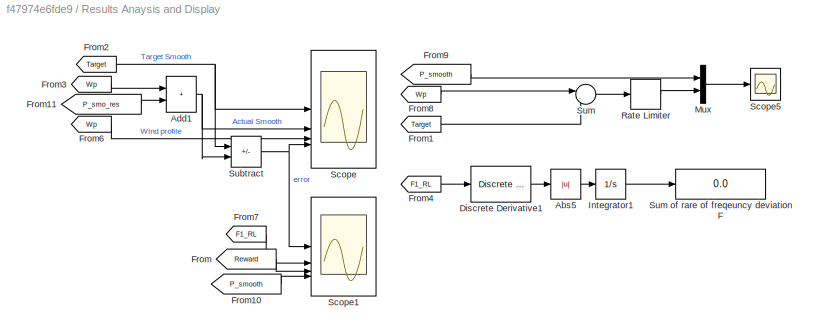
BLOCK [SubSystem] Results Anaysis and Display 
BLOCK [Abs] Results Anaysis and Display /Abs5
  SaturateOnIntegerOverflow = off
BLOCK [Sum] Results Anaysis and Display /Add1
  IconShape = rectangular
BLOCK [Reference] Results Anaysis and Display /Discrete Derivative1  REF=simulink/Discrete/Discrete Derivative
  SourceBlock = simulink/Discrete/Discrete Derivative
  SourceType = Discrete Derivative
BLOCK [From] Results Anaysis and Display /From
  GotoTag = Reward
  TagVisibility = global
BLOCK [From] Results Anaysis and Display /From1
  GotoTag = Target
  TagVisibility = global
BLOCK [From] Results Anaysis and Display /From10
  GotoTag = P_smooth
  TagVisibility = global
BLOCK [From] Results Anaysis and Display /From11
  GotoTag = P_smo_res
BLOCK [From] Results Anaysis and Display /From2
  GotoTag = Target
  TagVisibility = global
BLOCK [From] Results Anaysis and Display /From3
  GotoTag = Wp
  TagVisibility = global
BLOCK [From] Results Anaysis and Display /From4
  GotoTag = F1_RL
  TagVisibility = global
BLOCK [From] Results Anaysis and Display /From6
  GotoTag = Wp
  TagVisibility = global
BLOCK [From] Results Anaysis and Display /From7
  GotoTag = F1_RL
  TagVisibility = global
BLOCK [From] Results Anaysis and Display /From8
  GotoTag = Wp
  TagVisibility = global
BLOCK [From] Results Anaysis and Display /From9
  GotoTag = P_smooth
  TagVisibility = global
BLOCK [Integrator] Results Anaysis and Display /Integrator1
BLOCK [Mux] Results Anaysis and Display /Mux
  DisplayOption = bar
  Inputs = 2
BLOCK [RateLimiter] Results Anaysis and Display /Rate Limiter
  FallingSlewLimit = -0.1
  RisingSlewLimit = 0.1
  SampleTimeMode = inherited
BLOCK [Scope] Results Anaysis and Display /Scope
  Floating = off
  NumInputPorts = 4
  ScopeSpecificationString = Simulink.scopes.TimeScopeBlockCfg('CurrentConfiguration', extmgr.ConfigurationSet(extmgr.Configuration('Core','General UI',true),extmgr.Configuration('Core','Source UI',true),extmgr.Configuration('Sources','WiredSimulink',true,'DataLoggingVariableName','ScopeData1'),extmgr.Configuration('Visuals','Time Domain',true,'SerializedDisplays',{struct('MinYLimReal','0.5','MaxYLimReal','2.5','YLabelReal','...<+4380ch>
BLOCK [Scope] Results Anaysis and Display /Scope1
  Floating = off
  NumInputPorts = 4
  ScopeSpecificationString = Simulink.scopes.TimeScopeBlockCfg('CurrentConfiguration', extmgr.ConfigurationSet(extmgr.Configuration('Core','General UI',true),extmgr.Configuration('Core','Source UI',true),extmgr.Configuration('Sources','WiredSimulink',true,'DataLoggingVariableName','ScopeData2'),extmgr.Configuration('Visuals','Time Domain',true,'SerializedDisplays',{struct('MinYLimReal','-0.05625','MaxYLimReal','0.00625','YLab...<+3845ch>
BLOCK [Scope] Results Anaysis and Display /Scope5
  Floating = off
  NumInputPorts = 1
  ScopeSpecificationString = Simulink.scopes.TimeScopeBlockCfg('CurrentConfiguration', extmgr.ConfigurationSet(extmgr.Configuration('Core','General UI',true),extmgr.Configuration('Core','Source UI',true),extmgr.Configuration('Sources','WiredSimulink',true,'DataLoggingVariableName','P_smoth1','DataLogging',true,'DataLoggingSaveFormat','StructureWithTime'),extmgr.Configuration('Visuals','Time Domain',true,'SerializedDisplays',{...<+1607ch>
BLOCK [Sum] Results Anaysis and Display /Subtract
  IconShape = rectangular
  Inputs = +-
BLOCK [Sum] Results Anaysis and Display /Sum
  Inputs = |-+
BLOCK [Display] Results Anaysis and Display /Sum of  rare of freqeuncy deviation F
  Decimation = 1
BLOCK [Saturate] Saturation
  LowerLimit = -0.1
  UpperLimit = 0.1
BLOCK [Goto] Smoothing_set_point
  GotoTag = P_smooth
  TagVisibility = global
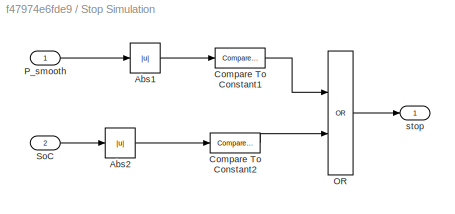
BLOCK [SubSystem] Stop Simulation
BLOCK [Abs] Stop Simulation/Abs1
  SaturateOnIntegerOverflow = off
BLOCK [Abs] Stop Simulation/Abs2
  SaturateOnIntegerOverflow = off
BLOCK [Reference] Stop Simulation/Compare To Constant1  REF=simulink/Logic and Bit
Operations/Compare
To Constant
  SourceBlock = simulink/Logic and Bit\nOperations/Compare\nTo Constant
  SourceType = Compare To Constant
BLOCK [Reference] Stop Simulation/Compare To Constant2  REF=simulink/Logic and Bit
Operations/Compare
To Constant
  SourceBlock = simulink/Logic and Bit\nOperations/Compare\nTo Constant
  SourceType = Compare To Constant
BLOCK [Logic] Stop Simulation/OR
  AllPortsSameDT = off
  IconShape = distinctive
  Operator = OR
  OutDataTypeStr = boolean
BLOCK [Inport] Stop Simulation/P_smooth
BLOCK [Inport] Stop Simulation/SoC
  Port = 2
BLOCK [Outport] Stop Simulation/stop
  VectorParamsAs1DForOutWhenUnconnected = off
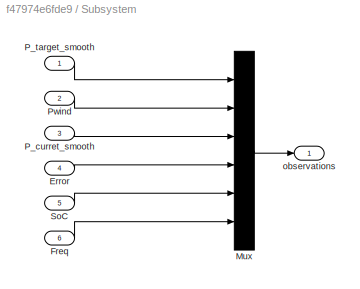
BLOCK [SubSystem] Subsystem
BLOCK [Inport] Subsystem/Error
  Port = 4
BLOCK [Inport] Subsystem/Freq
  Port = 6
BLOCK [Mux] Subsystem/Mux
  DisplayOption = bar
  Inputs = 6
BLOCK [Inport] Subsystem/P_curret_smooth
  Port = 3
BLOCK [Inport] Subsystem/P_target_smooth
BLOCK [Inport] Subsystem/Pwind
  Port = 2
BLOCK [Inport] Subsystem/SoC
  Port = 5
BLOCK [Outport] Subsystem/observations
  VectorParamsAs1DForOutWhenUnconnected = off
BLOCK [Sum] Subtract
  IconShape = rectangular
  Inputs = +-
BLOCK [Sum] Subtract1
  IconShape = rectangular
  Inputs = +-
BLOCK [Switch] Switch
  Criteria = u2 > Threshold
  InputSameDT = off
  NameLocation = left
  SaturateOnIntegerOverflow = off
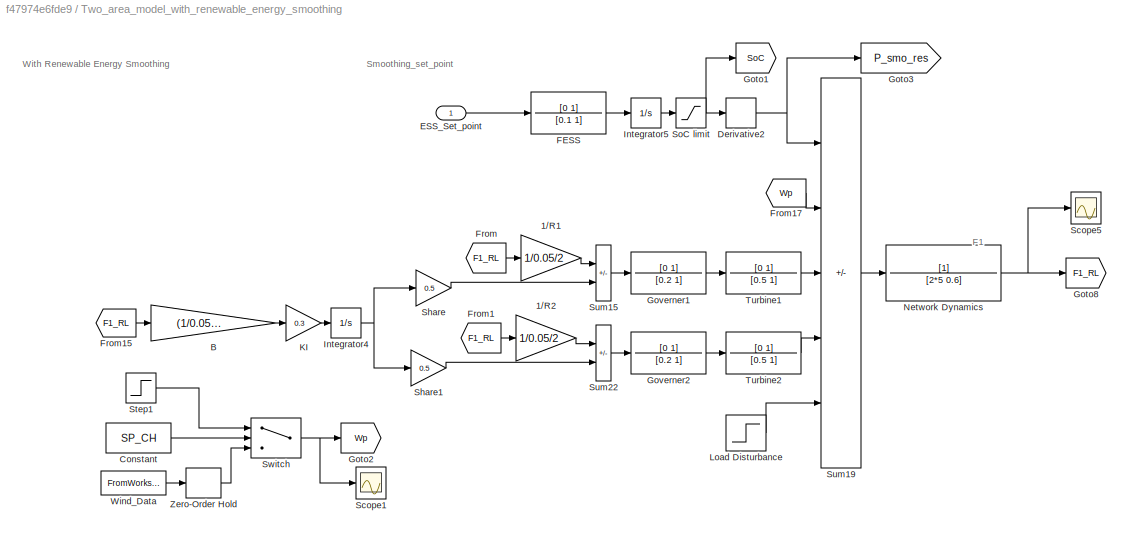
BLOCK [SubSystem] Two_area_model_with_renewable_energy_smoothing
BLOCK [Gain] Two_area_model_with_renewable_energy_smoothing/1//R1
  Gain = 1/0.05/2
  NameLocation = top
BLOCK [Gain] Two_area_model_with_renewable_energy_smoothing/1//R2
  Gain = 1/0.05/2
  NameLocation = top
BLOCK [Gain] Two_area_model_with_renewable_energy_smoothing/B
  Gain = (1/0.05)+0.6
  NameLocation = top
BLOCK [Constant] Two_area_model_with_renewable_energy_smoothing/Constant
  Value = SP_CH
BLOCK [Derivative] Two_area_model_with_renewable_energy_smoothing/Derivative2
BLOCK [Inport] Two_area_model_with_renewable_energy_smoothing/ESS_Set_point
BLOCK [TransferFcn] Two_area_model_with_renewable_energy_smoothing/FESS
  Denominator = [0.1  1]
  NameLocation = top
  Numerator = [0 1]
BLOCK [From] Two_area_model_with_renewable_energy_smoothing/From
  GotoTag = F1_RL
  TagVisibility = global
BLOCK [From] Two_area_model_with_renewable_energy_smoothing/From1
  GotoTag = F1_RL
  TagVisibility = global
BLOCK [From] Two_area_model_with_renewable_energy_smoothing/From15
  GotoTag = F1_RL
  TagVisibility = global
BLOCK [From] Two_area_model_with_renewable_energy_smoothing/From17
  GotoTag = Wp
  TagVisibility = global
BLOCK [Goto] Two_area_model_with_renewable_energy_smoothing/Goto1
  GotoTag = SoC
  TagVisibility = global
BLOCK [Goto] Two_area_model_with_renewable_energy_smoothing/Goto2
  GotoTag = Wp
  TagVisibility = global
BLOCK [Goto] Two_area_model_with_renewable_energy_smoothing/Goto3
  GotoTag = P_smo_res
BLOCK [Goto] Two_area_model_with_renewable_energy_smoothing/Goto8
  GotoTag = F1_RL
  TagVisibility = global
BLOCK [TransferFcn] Two_area_model_with_renewable_energy_smoothing/Governer1
  Denominator = [0.2  1]
  NameLocation = top
  Numerator = [0 1]
BLOCK [TransferFcn] Two_area_model_with_renewable_energy_smoothing/Governer2
  Denominator = [0.2  1]
  NameLocation = top
  Numerator = [0 1]
BLOCK [Integrator] Two_area_model_with_renewable_energy_smoothing/Integrator4
BLOCK [Integrator] Two_area_model_with_renewable_energy_smoothing/Integrator5
  InitialCondition = -9600/10/2
BLOCK [Gain] Two_area_model_with_renewable_energy_smoothing/KI
  Gain = 0.3
  NameLocation = top
BLOCK [Step] Two_area_model_with_renewable_energy_smoothing/Load Disturbance
  Time = 20+rand*10
BLOCK [TransferFcn] Two_area_model_with_renewable_energy_smoothing/Network Dynamics
  Denominator = [2*5  0.6]
  NameLocation = top
BLOCK [Scope] Two_area_model_with_renewable_energy_smoothing/Scope1
  Floating = off
  NumInputPorts = 1
  ScopeSpecificationString = Simulink.scopes.TimeScopeBlockCfg('CurrentConfiguration', extmgr.ConfigurationSet(extmgr.Configuration('Core','General UI',true),extmgr.Configuration('Core','Source UI',true),extmgr.Configuration('Sources','WiredSimulink',true,'DataLoggingSaveFormat','Array','DataLoggingDecimation','1','DataLoggingDecimateData',true,'DataLoggingVariableName','ScopeData3'),extmgr.Configuration('Visuals','Time Domai...<+1902ch>
BLOCK [Scope] Two_area_model_with_renewable_energy_smoothing/Scope5
  Floating = off
  NumInputPorts = 1
  ScopeSpecificationString = Simulink.scopes.TimeScopeBlockCfg('CurrentConfiguration', extmgr.ConfigurationSet(extmgr.Configuration('Core','General UI',true),extmgr.Configuration('Core','Source UI',true),extmgr.Configuration('Sources','WiredSimulink',true,'DataLoggingSaveFormat','Array','DataLoggingDecimation','1','DataLoggingDecimateData',true,'DataLoggingVariableName','ScopeData3'),extmgr.Configuration('Visuals','Time Domai...<+1788ch>
BLOCK [Gain] Two_area_model_with_renewable_energy_smoothing/Share
  Gain = 0.5
  NameLocation = top
BLOCK [Gain] Two_area_model_with_renewable_energy_smoothing/Share1
  Gain = 0.5
  NameLocation = top
BLOCK [Saturate] Two_area_model_with_renewable_energy_smoothing/SoC limit
  LowerLimit = -9600/10
  UpperLimit = 0
BLOCK [Step] Two_area_model_with_renewable_energy_smoothing/Step1
  After = 1.55
  Before = 1.5
  SampleTime = 0
  Time = 25
BLOCK [Sum] Two_area_model_with_renewable_energy_smoothing/Sum15
  IconShape = rectangular
  InputSameDT = on
  Inputs = --
  NameLocation = top
  OutDataTypeStr = Inherit: Same as first input
  SaturateOnIntegerOverflow = on
BLOCK [Sum] Two_area_model_with_renewable_energy_smoothing/Sum19
  IconShape = rectangular
  InputSameDT = on
  Inputs = ++++-
  NameLocation = top
  OutDataTypeStr = Inherit: Same as first input
  SaturateOnIntegerOverflow = on
BLOCK [Sum] Two_area_model_with_renewable_energy_smoothing/Sum22
  IconShape = rectangular
  InputSameDT = on
  Inputs = --
  NameLocation = top
  OutDataTypeStr = Inherit: Same as first input
  SaturateOnIntegerOverflow = on
BLOCK [Switch] Two_area_model_with_renewable_energy_smoothing/Switch
  Criteria = u2 > Threshold
  InputSameDT = off
  SaturateOnIntegerOverflow = off
BLOCK [TransferFcn] Two_area_model_with_renewable_energy_smoothing/Turbine1
  Denominator = [0.5  1]
  NameLocation = top
  Numerator = [0 1]
BLOCK [TransferFcn] Two_area_model_with_renewable_energy_smoothing/Turbine2
  Denominator = [0.5  1]
  NameLocation = top
  Numerator = [0 1]
BLOCK [FromWorkspace] Two_area_model_with_renewable_energy_smoothing/Wind_Data
  SampleTime = 0.1
  VariableName = WindProfile
BLOCK [ZeroOrderHold] Two_area_model_with_renewable_energy_smoothing/Zero-Order Hold
  SampleTime = 0.01
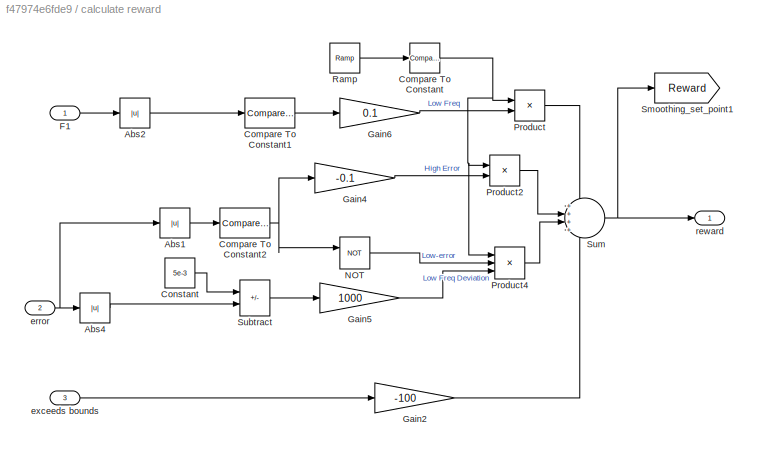
BLOCK [SubSystem] calculate reward
BLOCK [Abs] calculate reward/Abs1
  SaturateOnIntegerOverflow = off
BLOCK [Abs] calculate reward/Abs2
  SaturateOnIntegerOverflow = off
BLOCK [Abs] calculate reward/Abs4
  SaturateOnIntegerOverflow = off
BLOCK [Reference] calculate reward/Compare To Constant  REF=simulink/Logic and Bit
Operations/Compare
To Constant
  SourceBlock = simulink/Logic and Bit\nOperations/Compare\nTo Constant
  SourceType = Compare To Constant
BLOCK [Reference] calculate reward/Compare To Constant1  REF=simulink/Logic and Bit
Operations/Compare
To Constant
  SourceBlock = simulink/Logic and Bit\nOperations/Compare\nTo Constant
  SourceType = Compare To Constant
BLOCK [Reference] calculate reward/Compare To Constant2  REF=simulink/Logic and Bit
Operations/Compare
To Constant
  SourceBlock = simulink/Logic and Bit\nOperations/Compare\nTo Constant
  SourceType = Compare To Constant
BLOCK [Constant] calculate reward/Constant
  Value = 5e-3
BLOCK [Inport] calculate reward/F1
BLOCK [Gain] calculate reward/Gain2
  Gain = -100
BLOCK [Gain] calculate reward/Gain4
  Gain = -0.1
BLOCK [Gain] calculate reward/Gain5
  Gain = 1000
BLOCK [Gain] calculate reward/Gain6
  Gain = 0.1
BLOCK [Logic] calculate reward/NOT
  AllPortsSameDT = off
  IconShape = distinctive
  Operator = NOT
  OutDataTypeStr = boolean
BLOCK [Product] calculate reward/Product
BLOCK [Product] calculate reward/Product2
BLOCK [Product] calculate reward/Product4
  Inputs = 3
BLOCK [Reference] calculate reward/Ramp  REF=simulink/Sources/Ramp
  SourceBlock = simulink/Sources/Ramp
  SourceType = Ramp
BLOCK [Goto] calculate reward/Smoothing_set_point1
  GotoTag = Reward
  TagVisibility = global
BLOCK [Sum] calculate reward/Subtract
  IconShape = rectangular
  Inputs = +-
BLOCK [Sum] calculate reward/Sum
  Inputs = ++++
  OutDataTypeStr = double
BLOCK [Inport] calculate reward/error
  Port = 2
BLOCK [Inport] calculate reward/exceeds bounds
  Port = 3
BLOCK [Outport] calculate reward/reward
  VectorParamsAs1DForOutWhenUnconnected = off
ANNOTATION (root): The agents is trained to Control A renwable energy smoothing facility increased output power. The agents aims to follow a target smoothing curve by the power system operator and while doing so, it need to minimize the freqeuncy deviation and rate of frequency deviation. This is done by Ahmed Abd Elaziz: <email>, under the supervision of Prof. Hany E.Z. Farag Smart grid lab at York University.
ANNOTATION Two_area_model_with_renewable_energy_smoothing: F1
ANNOTATION Two_area_model_with_renewable_energy_smoothing: Smoothing_set_point
ANNOTATION Two_area_model_with_renewable_energy_smoothing: With Renewable Energy Smoothing
NET Add:1 -> Subsystem:3, Subtract1:2, Subtract:2
LINE Compare To Constant2:1 -> RL Agent:6
LINE Constant1:1 -> Switch:2
LINE Constant2:1 -> Compare To Constant2:1
LINE Constant:1 -> Switch:1
LINE Delay:1 -> RL Agent:5
LINE From10:1 -> Add:2
NET From1:1 -> Subsystem:6, calculate reward:1
LINE From2:1 -> Subsystem:2
NET From4:1 -> Stop Simulation:2, Subsystem:5
NET From6:1 -> Add:1, Mean:1
LINE From7:1 -> Two_area_model_with_renewable_energy_smoothing:1
LINE From:1 -> Stop Simulation:1
LINE Integrator:1 -> Smoothing_set_point:1
LINE Mean:1 -> Switch:3
LINE PID Controller:1 -> Saturation:1
NET RL Agent:1 -> Delay:1, Integrator:1
LINE Results Anaysis and Display /Abs5:1 -> Results Anaysis and Display /Integrator1:1
NET Results Anaysis and Display /Add1:1 -> Results Anaysis and Display /Scope:2, Results Anaysis and Display /Subtract:2
LINE Results Anaysis and Display /Discrete Derivative1:1 -> Results Anaysis and Display /Abs5:1
LINE Results Anaysis and Display /From10:1 -> Results Anaysis and Display /Scope1:4
LINE Results Anaysis and Display /From11:1 -> Results Anaysis and Display /Add1:2
LINE Results Anaysis and Display /From1:1 -> Results Anaysis and Display /Sum:2
NET Results Anaysis and Display /From2:1 -> Results Anaysis and Display /Scope:1, Results Anaysis and Display /Subtract:1
LINE Results Anaysis and Display /From3:1 -> Results Anaysis and Display /Add1:1
LINE Results Anaysis and Display /From4:1 -> Results Anaysis and Display /Discrete Derivative1:1
LINE Results Anaysis and Display /From6:1 -> Results Anaysis and Display /Scope:3
LINE Results Anaysis and Display /From7:1 -> Results Anaysis and Display /Scope1:2
LINE Results Anaysis and Display /From8:1 -> Results Anaysis and Display /Sum:1
LINE Results Anaysis and Display /From9:1 -> Results Anaysis and Display /Mux:1
LINE Results Anaysis and Display /From:1 -> Results Anaysis and Display /Scope1:3
LINE Results Anaysis and Display /Integrator1:1 -> Results Anaysis and Display /Sum of  rare of freqeuncy deviation F:1
LINE Results Anaysis and Display /Mux:1 -> Results Anaysis and Display /Scope5:1
LINE Results Anaysis and Display /Rate Limiter:1 -> Results Anaysis and Display /Mux:2
NET Results Anaysis and Display /Subtract:1 -> Results Anaysis and Display /Scope1:1, Results Anaysis and Display /Scope:4
LINE Results Anaysis and Display /Sum:1 -> Results Anaysis and Display /Rate Limiter:1
LINE Saturation:1 -> RL Agent:4
LINE Stop Simulation/Abs1:1 -> Stop Simulation/Compare To Constant1:1
LINE Stop Simulation/Abs2:1 -> Stop Simulation/Compare To Constant2:1
LINE Stop Simulation/Compare To Constant1:1 -> Stop Simulation/OR:1
LINE Stop Simulation/Compare To Constant2:1 -> Stop Simulation/OR:2
LINE Stop Simulation/OR:1 -> Stop Simulation/stop:1
LINE Stop Simulation/P_smooth:1 -> Stop Simulation/Abs1:1
LINE Stop Simulation/SoC:1 -> Stop Simulation/Abs2:1
NET Stop Simulation:1 -> RL Agent:3, calculate reward:3
LINE Subsystem/Error:1 -> Subsystem/Mux:4
LINE Subsystem/Freq:1 -> Subsystem/Mux:6
LINE Subsystem/Mux:1 -> Subsystem/observations:1
LINE Subsystem/P_curret_smooth:1 -> Subsystem/Mux:3
LINE Subsystem/P_target_smooth:1 -> Subsystem/Mux:1
LINE Subsystem/Pwind:1 -> Subsystem/Mux:2
LINE Subsystem/SoC:1 -> Subsystem/Mux:5
LINE Subsystem:1 -> RL Agent:1
LINE Subtract1:1 -> PID Controller:1
NET Subtract:1 -> Subsystem:4, calculate reward:2
NET Switch:1 -> Goto:1, Subsystem:1, Subtract1:1, Subtract:1
LINE Two_area_model_with_renewable_energy_smoothing/1//R1:1 -> Two_area_model_with_renewable_energy_smoothing/Sum15:1
LINE Two_area_model_with_renewable_energy_smoothing/1//R2:1 -> Two_area_model_with_renewable_energy_smoothing/Sum22:1
LINE Two_area_model_with_renewable_energy_smoothing/B:1 -> Two_area_model_with_renewable_energy_smoothing/KI:1
LINE Two_area_model_with_renewable_energy_smoothing/Constant:1 -> Two_area_model_with_renewable_energy_smoothing/Switch:2
NET Two_area_model_with_renewable_energy_smoothing/Derivative2:1 -> Two_area_model_with_renewable_energy_smoothing/Goto3:1, Two_area_model_with_renewable_energy_smoothing/Sum19:1
LINE Two_area_model_with_renewable_energy_smoothing/ESS_Set_point:1 -> Two_area_model_with_renewable_energy_smoothing/FESS:1
LINE Two_area_model_with_renewable_energy_smoothing/FESS:1 -> Two_area_model_with_renewable_energy_smoothing/Integrator5:1
LINE Two_area_model_with_renewable_energy_smoothing/From15:1 -> Two_area_model_with_renewable_energy_smoothing/B:1
LINE Two_area_model_with_renewable_energy_smoothing/From17:1 -> Two_area_model_with_renewable_energy_smoothing/Sum19:2
LINE Two_area_model_with_renewable_energy_smoothing/From1:1 -> Two_area_model_with_renewable_energy_smoothing/1//R2:1
LINE Two_area_model_with_renewable_energy_smoothing/From:1 -> Two_area_model_with_renewable_energy_smoothing/1//R1:1
LINE Two_area_model_with_renewable_energy_smoothing/Governer1:1 -> Two_area_model_with_renewable_energy_smoothing/Turbine1:1
LINE Two_area_model_with_renewable_energy_smoothing/Governer2:1 -> Two_area_model_with_renewable_energy_smoothing/Turbine2:1
NET Two_area_model_with_renewable_energy_smoothing/Integrator4:1 -> Two_area_model_with_renewable_energy_smoothing/Share1:1, Two_area_model_with_renewable_energy_smoothing/Share:1
LINE Two_area_model_with_renewable_energy_smoothing/Integrator5:1 -> Two_area_model_with_renewable_energy_smoothing/SoC limit:1
LINE Two_area_model_with_renewable_energy_smoothing/KI:1 -> Two_area_model_with_renewable_energy_smoothing/Integrator4:1
LINE Two_area_model_with_renewable_energy_smoothing/Load Disturbance:1 -> Two_area_model_with_renewable_energy_smoothing/Sum19:5
NET Two_area_model_with_renewable_energy_smoothing/Network Dynamics:1 -> Two_area_model_with_renewable_energy_smoothing/Goto8:1, Two_area_model_with_renewable_energy_smoothing/Scope5:1
LINE Two_area_model_with_renewable_energy_smoothing/Share1:1 -> Two_area_model_with_renewable_energy_smoothing/Sum22:2
LINE Two_area_model_with_renewable_energy_smoothing/Share:1 -> Two_area_model_with_renewable_energy_smoothing/Sum15:2
NET Two_area_model_with_renewable_energy_smoothing/SoC limit:1 -> Two_area_model_with_renewable_energy_smoothing/Derivative2:1, Two_area_model_with_renewable_energy_smoothing/Goto1:1
LINE Two_area_model_with_renewable_energy_smoothing/Step1:1 -> Two_area_model_with_renewable_energy_smoothing/Switch:1
LINE Two_area_model_with_renewable_energy_smoothing/Sum15:1 -> Two_area_model_with_renewable_energy_smoothing/Governer1:1
LINE Two_area_model_with_renewable_energy_smoothing/Sum19:1 -> Two_area_model_with_renewable_energy_smoothing/Network Dynamics:1
LINE Two_area_model_with_renewable_energy_smoothing/Sum22:1 -> Two_area_model_with_renewable_energy_smoothing/Governer2:1
NET Two_area_model_with_renewable_energy_smoothing/Switch:1 -> Two_area_model_with_renewable_energy_smoothing/Goto2:1, Two_area_model_with_renewable_energy_smoothing/Scope1:1
LINE Two_area_model_with_renewable_energy_smoothing/Turbine1:1 -> Two_area_model_with_renewable_energy_smoothing/Sum19:3
LINE Two_area_model_with_renewable_energy_smoothing/Turbine2:1 -> Two_area_model_with_renewable_energy_smoothing/Sum19:4
LINE Two_area_model_with_renewable_energy_smoothing/Wind_Data:1 -> Two_area_model_with_renewable_energy_smoothing/Zero-Order Hold:1
LINE Two_area_model_with_renewable_energy_smoothing/Zero-Order Hold:1 -> Two_area_model_with_renewable_energy_smoothing/Switch:3
LINE calculate reward/Abs1:1 -> calculate reward/Compare To Constant2:1
LINE calculate reward/Abs2:1 -> calculate reward/Compare To Constant1:1
LINE calculate reward/Abs4:1 -> calculate reward/Subtract:2
LINE calculate reward/Compare To Constant1:1 -> calculate reward/Gain6:1
NET calculate reward/Compare To Constant2:1 -> calculate reward/Gain4:1, calculate reward/NOT:1
NET calculate reward/Compare To Constant:1 -> calculate reward/Product2:1, calculate reward/Product4:1, calculate reward/Product:1
LINE calculate reward/Constant:1 -> calculate reward/Subtract:1
LINE calculate reward/F1:1 -> calculate reward/Abs2:1
LINE calculate reward/Gain2:1 -> calculate reward/Sum:4
LINE calculate reward/Gain4:1 -> calculate reward/Product2:2
LINE calculate reward/Gain5:1 -> calculate reward/Product4:3
LINE calculate reward/Gain6:1 -> calculate reward/Product:2
LINE calculate reward/NOT:1 -> calculate reward/Product4:2
LINE calculate reward/Product2:1 -> calculate reward/Sum:2
LINE calculate reward/Product4:1 -> calculate reward/Sum:3
LINE calculate reward/Product:1 -> calculate reward/Sum:1
LINE calculate reward/Ramp:1 -> calculate reward/Compare To Constant:1
LINE calculate reward/Subtract:1 -> calculate reward/Gain5:1
NET calculate reward/Sum:1 -> calculate reward/Smoothing_set_point1:1, calculate reward/reward:1
NET calculate reward/error:1 -> calculate reward/Abs1:1, calculate reward/Abs4:1
LINE calculate reward/exceeds bounds:1 -> calculate reward/Gain2:1
LINE calculate reward:1 -> RL Agent:2
note: NET lines group one-source signal fan-out (src -> all destinations, sorted); 1:1 wires keep LINE
